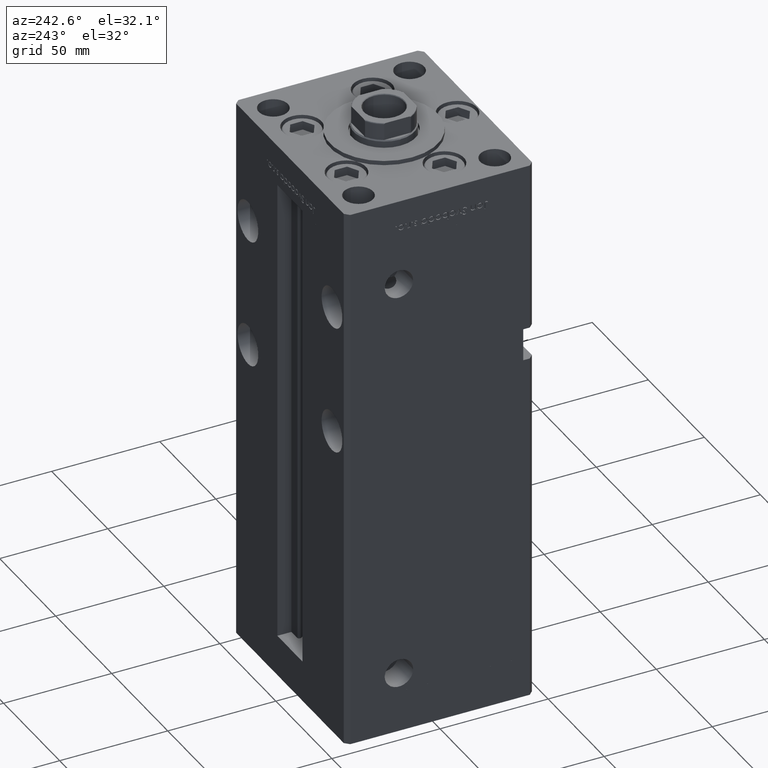
[diagram: clean part render]
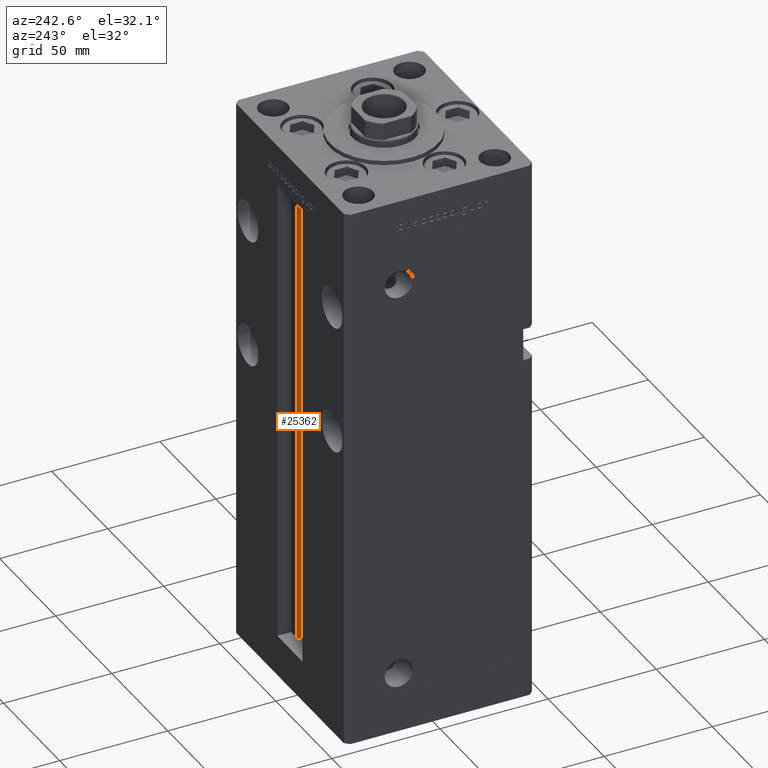
[diagram: same view with one face highlighted and labeled with its STEP entity id]
A machine part, auxiliary view. The second image highlights one B-rep face of the part: STEP entity #25362.
In plain terms, the highlighted cylindrical surface (edge-blend (fillet) strip) has radius 0.9333 mm, axis along (0, 0, 1).
Its self-contained STEP definition (entity closure, byte-faithful):
#1642 = CARTESIAN_POINT ( 'NONE',  ( 6.183333333333996151, 36.06666666666599497, 0.000000000000000000 ) ) ;
#2263 = ORIENTED_EDGE ( 'NONE', *, *, #17218, .F. ) ;
#5660 = CYLINDRICAL_SURFACE ( 'NONE', #6654, 0.9333333333339999260 ) ;
#6654 = AXIS2_PLACEMENT_3D ( 'NONE', #1642, #33382, #33661 ) ;
#8110 = CARTESIAN_POINT ( 'NONE',  ( 6.183333333333996151, 37.00000000000000000, 0.000000000000000000 ) ) ;
#8215 = CARTESIAN_POINT ( 'NONE',  ( 6.183333333333996151, 36.06666666666599497, 218.5000000000000000 ) ) ;
#10995 = VERTEX_POINT ( 'NONE', #31558 ) ;
#11071 = VERTEX_POINT ( 'NONE', #8110 ) ;
#11554 = DIRECTION ( 'NONE',  ( -0.000000000000000000, -0.000000000000000000, 1.000000000000000000 ) ) ;
#12829 = CIRCLE ( 'NONE', #42046, 0.9333333333339999260 ) ;
#13568 = VERTEX_POINT ( 'NONE', #18701 ) ;
#15167 = ORIENTED_EDGE ( 'NONE', *, *, #27124, .T. ) ;
#17218 = EDGE_CURVE ( 'NONE', #11071, #10995, #33296, .T. ) ;
#18110 = CARTESIAN_POINT ( 'NONE',  ( 6.183333333333996151, 36.06666666666599497, 0.000000000000000000 ) ) ;
#18701 = CARTESIAN_POINT ( 'NONE',  ( 5.375042956467944499, 35.59999999999899245, 0.000000000000000000 ) ) ;
#19612 = AXIS2_PLACEMENT_3D ( 'NONE', #18110, #29395, #33975 ) ;
#21177 = CARTESIAN_POINT ( 'NONE',  ( 6.183333333333996151, 37.00000000000000000, 0.000000000000000000 ) ) ;
#21495 = CARTESIAN_POINT ( 'NONE',  ( 5.375042956467946276, 35.59999999999899245, 218.5000000000000000 ) ) ;
#23944 = VECTOR ( 'NONE', #11554, 1000.000000000000000 ) ;
#25174 = DIRECTION ( 'NONE',  ( 1.000000000000000000, 0.000000000000000000, 0.000000000000000000 ) ) ;
#25362 = ADVANCED_FACE ( 'NONE', ( #38496 ), #5660, .T. ) ;
#27124 = EDGE_CURVE ( 'NONE', #13568, #35689, #48459, .T. ) ;
#29395 = DIRECTION ( 'NONE',  ( -0.000000000000000000, -0.000000000000000000, -1.000000000000000000 ) ) ;
#30268 = EDGE_LOOP ( 'NONE', ( #2263, #52137, #15167, #43280 ) ) ;
#30408 = EDGE_CURVE ( 'NONE', #35689, #10995, #12829, .T. ) ;
#31558 = CARTESIAN_POINT ( 'NONE',  ( 6.183333333333996151, 37.00000000000000000, 218.5000000000000000 ) ) ;
#33296 = LINE ( 'NONE', #21177, #43519 ) ;
#33382 = DIRECTION ( 'NONE',  ( -0.000000000000000000, -0.000000000000000000, 1.000000000000000000 ) ) ;
#33661 = DIRECTION ( 'NONE',  ( 1.000000000000000000, 0.000000000000000000, 0.000000000000000000 ) ) ;
#33975 = DIRECTION ( 'NONE',  ( 1.000000000000000000, 0.000000000000000000, 0.000000000000000000 ) ) ;
#35689 = VERTEX_POINT ( 'NONE', #21495 ) ;
#37597 = DIRECTION ( 'NONE',  ( -0.000000000000000000, -0.000000000000000000, 1.000000000000000000 ) ) ;
#38496 = FACE_OUTER_BOUND ( 'NONE', #30268, .T. ) ;
#42046 = AXIS2_PLACEMENT_3D ( 'NONE', #8215, #45105, #25174 ) ;
#43280 = ORIENTED_EDGE ( 'NONE', *, *, #30408, .T. ) ;
#43519 = VECTOR ( 'NONE', #37597, 1000.000000000000000 ) ;
#44511 = CIRCLE ( 'NONE', #19612, 0.9333333333339999260 ) ;
#44638 = EDGE_CURVE ( 'NONE', #13568, #11071, #44511, .T. ) ;
#45105 = DIRECTION ( 'NONE',  ( 0.000000000000000000, 0.000000000000000000, -1.000000000000000000 ) ) ;
#48459 = LINE ( 'NONE', #52221, #23944 ) ;
#52137 = ORIENTED_EDGE ( 'NONE', *, *, #44638, .F. ) ;
#52221 = CARTESIAN_POINT ( 'NONE',  ( 5.375042956467944499, 35.59999999999899245, 0.000000000000000000 ) ) ;